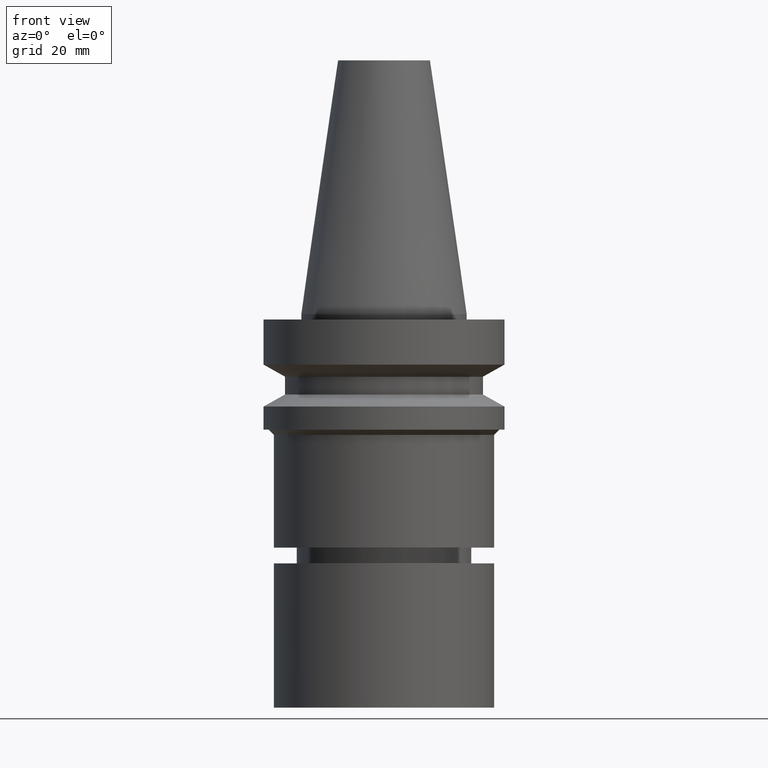
[diagram: clean part render]
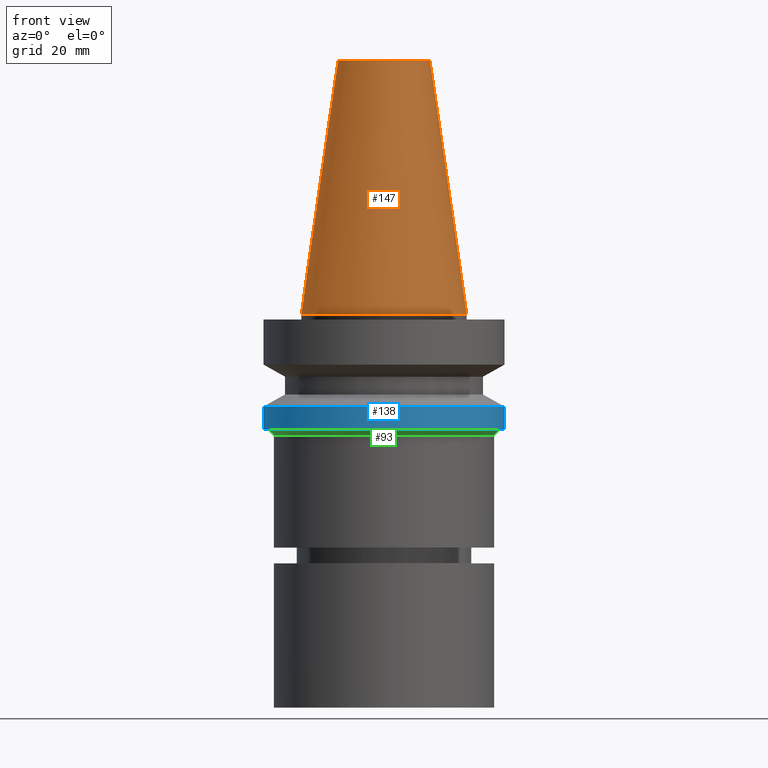
[diagram: same view with three faces highlighted in distinct colors, each labeled with its STEP entity id]
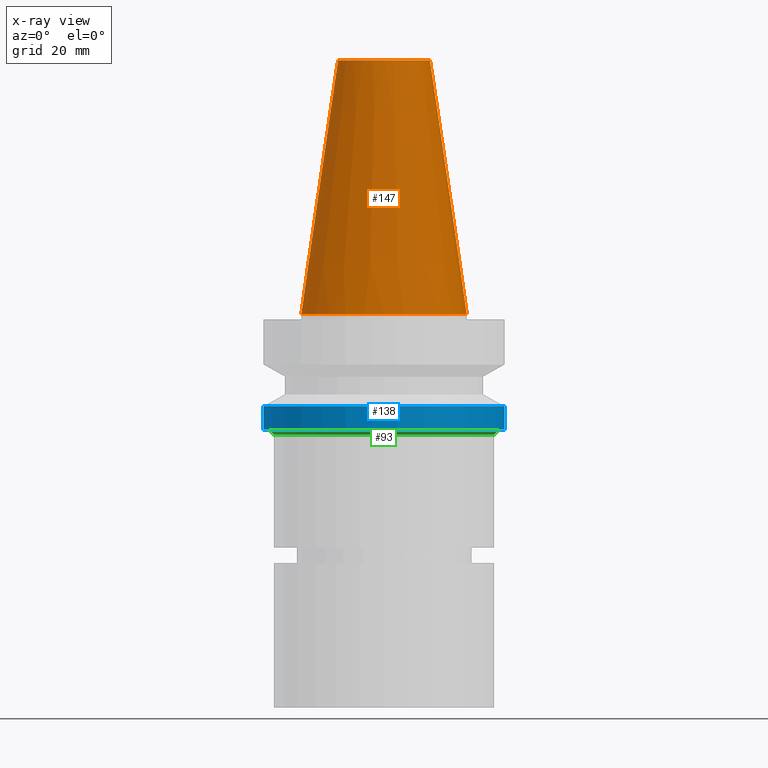
[diagram: x-ray of the same camera — body ghosted, the three highlighted faces saturated]
A machine part, front view with three faces highlighted in distinct colors.
The next image is the same camera in x-ray (body ghosted, the three faces saturated) — at least one of them is partly hidden behind the body in this view.
Their STEP definitions:

[orange] entity #147 — the highlighted conical surface has half-angle 8.297 deg.
#98=EDGE_CURVE('Unnamed[1]',#237,#237,#238,.T.);
#116=EDGE_CURVE('Unnamed[1]',#265,#265,#266,.T.);
#147=ADVANCED_FACE('Unnamed[1]',(#313,#314),#315,.T.);
#237=VERTEX_POINT('',#420);
#238=CIRCLE('',#421,15.875);
#265=VERTEX_POINT('',#455);
#266=CIRCLE('',#456,8.81650000198669);
#313=FACE_BOUND('',#515,.T.);
#314=FACE_BOUND('',#516,.T.);
#315=CONICAL_SURFACE('',#517,12.3457500009933,0.144815870013618);
#420=CARTESIAN_POINT('',(-1.95674482349743E-031,15.875,1.94412679364642E-015));
#421=AXIS2_PLACEMENT_3D('',#620,#621,#622);
#455=CARTESIAN_POINT('',(-2.96364525393659E-015,8.81650000198669,48.4));
#456=AXIS2_PLACEMENT_3D('',#652,#653,#654);
#515=EDGE_LOOP('',(#706));
#516=EDGE_LOOP('',(#707));
#517=AXIS2_PLACEMENT_3D('',#708,#709,#710);
#620=CARTESIAN_POINT('',(0.0,0.0,0.0));
#621=DIRECTION('',(6.12323399573677E-017,1.22464679914735E-016,-1.0));
#622=DIRECTION('',(-1.23259516440783E-032,1.0,1.22464679914735E-016));
#652=CARTESIAN_POINT('',(-2.96364525393659E-015,-5.92729050787319E-015,48.4));
#653=DIRECTION('',(6.12323399573677E-017,1.22464679914735E-016,-1.0));
#654=DIRECTION('',(-1.23259516440783E-032,1.0,1.22464679914735E-016));
#706=ORIENTED_EDGE('',*,*,#98,.F.);
#707=ORIENTED_EDGE('',*,*,#116,.T.);
#708=CARTESIAN_POINT('',(-1.4818226269683E-015,-2.96364525393659E-015,24.2));
#709=DIRECTION('',(6.12323399573677E-017,1.22464679914735E-016,-1.0));
#710=DIRECTION('',(-1.23259516440783E-032,1.0,1.22464679914735E-016));

[blue] entity #138 — the highlighted cylindrical surface (bore or boss wall) has radius 23 mm, axis along (0, 0, -1).
#124=EDGE_CURVE('Unnamed[1]',#277,#277,#278,.T.);
#138=ADVANCED_FACE('Unnamed[1]',(#298,#299),#300,.T.);
#154=EDGE_CURVE('Unnamed[1]',#325,#325,#326,.T.);
#277=VERTEX_POINT('',#471);
#278=CIRCLE('',#472,23.0);
#298=FACE_BOUND('',#497,.T.);
#299=FACE_BOUND('',#498,.T.);
#300=CYLINDRICAL_SURFACE('',#499,23.0);
#325=VERTEX_POINT('',#530);
#326=CIRCLE('',#531,23.0);
#471=CARTESIAN_POINT('',(1.07768918324967E-015,23.0,-17.6));
#472=AXIS2_PLACEMENT_3D('',#664,#665,#666);
#497=EDGE_LOOP('',(#688));
#498=EDGE_LOOP('',(#689));
#499=AXIS2_PLACEMENT_3D('',#690,#691,#692);
#530=CARTESIAN_POINT('',(1.34711147906209E-015,23.0,-22.0));
#531=AXIS2_PLACEMENT_3D('',#720,#721,#722);
#664=CARTESIAN_POINT('',(1.07768918324967E-015,2.15537836649934E-015,-17.6));
#665=DIRECTION('',(6.12323399573677E-017,1.22464679914735E-016,-1.0));
#666=DIRECTION('',(-1.23259516440783E-032,1.0,1.22464679914735E-016));
#688=ORIENTED_EDGE('',*,*,#154,.F.);
#689=ORIENTED_EDGE('',*,*,#124,.T.);
#690=CARTESIAN_POINT('',(1.21240033115588E-015,2.42480066231176E-015,-19.8));
#691=DIRECTION('',(6.12323399573677E-017,1.22464679914735E-016,-1.0));
#692=DIRECTION('',(-1.23259516440783E-032,1.0,1.22464679914735E-016));
#720=CARTESIAN_POINT('',(1.34711147906209E-015,2.69422295812418E-015,-22.0));
#721=DIRECTION('',(6.12323399573677E-017,1.22464679914735E-016,-1.0));
#722=DIRECTION('',(-1.23259516440783E-032,1.0,1.22464679914735E-016));

[green] entity #93 — the highlighted conical surface has half-angle 45 deg.
#93=ADVANCED_FACE('Unnamed[1]',(#228,#229),#230,.T.);
#120=EDGE_CURVE('Unnamed[1]',#271,#271,#272,.T.);
#158=EDGE_CURVE('Unnamed[1]',#331,#331,#332,.T.);
#228=FACE_BOUND('',#409,.T.);
#229=FACE_BOUND('',#410,.T.);
#230=CONICAL_SURFACE('',#411,21.5000000000002,0.785398163397447);
#271=VERTEX_POINT('',#463);
#272=CIRCLE('',#464,21.0000000000002);
#331=VERTEX_POINT('',#538);
#332=CIRCLE('',#539,22.0000000000002);
#409=EDGE_LOOP('',(#609));
#410=EDGE_LOOP('',(#610));
#411=AXIS2_PLACEMENT_3D('',#611,#612,#613);
#463=CARTESIAN_POINT('',(1.40834381901946E-015,21.0000000000002,-23.0));
#464=AXIS2_PLACEMENT_3D('',#658,#659,#660);
#538=CARTESIAN_POINT('',(1.34711147906209E-015,22.0000000000002,-22.0));
#539=AXIS2_PLACEMENT_3D('',#726,#727,#728);
#609=ORIENTED_EDGE('',*,*,#120,.F.);
#610=ORIENTED_EDGE('',*,*,#158,.T.);
#611=CARTESIAN_POINT('',(1.37772764904077E-015,2.75545529808154E-015,-22.5));
#612=DIRECTION('',(-6.12323399573676E-017,-1.22464679914735E-016,1.0));
#613=DIRECTION('',(-1.23259516440783E-032,1.0,1.22464679914735E-016));
#658=CARTESIAN_POINT('',(1.40834381901946E-015,2.81668763803891E-015,-23.0));
#659=DIRECTION('',(6.12323399573677E-017,1.22464679914735E-016,-1.0));
#660=DIRECTION('',(-1.23259516440783E-032,1.0,1.22464679914735E-016));
#726=CARTESIAN_POINT('',(1.34711147906209E-015,2.69422295812418E-015,-22.0));
#727=DIRECTION('',(6.12323399573677E-017,1.22464679914735E-016,-1.0));
#728=DIRECTION('',(-1.23259516440783E-032,1.0,1.22464679914735E-016));